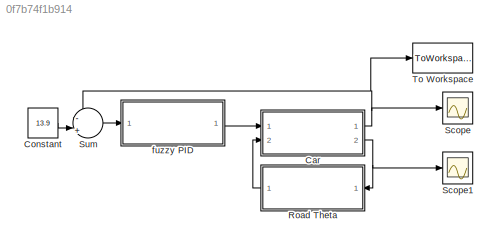
MODEL slx_0f7b74f1b914
KIND model
CONFIG AbsTol = auto
CONFIG FixedStep = auto
CONFIG MaxStep = auto
CONFIG MinStep = auto
CONFIG RelTol = 1e-3
CONFIG SampleTimeConstraint = Unconstrained
CONFIG Solver = VariableStepAuto
CONFIG SolverMode = Auto
CONFIG SolverName = VariableStepAuto
CONFIG StartTime = 0.0
CONFIG StopTime = 20
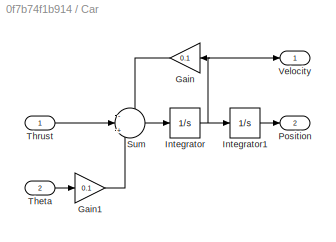
BLOCK [SubSystem] Car
  Ports = [2, 2]
  RequestExecContextInheritance = off
  Variant = off
BLOCK [Gain] Car/Gain
  Gain = 0.1
  OutDataTypeStr = Inherit: Inherit via internal rule
  ParamDataTypeStr = Inherit: Inherit via internal rule
  SaturateOnIntegerOverflow = off
BLOCK [Gain] Car/Gain1
  Gain = 0.1
  OutDataTypeStr = Inherit: Inherit via internal rule
  ParamDataTypeStr = Inherit: Inherit via internal rule
  SaturateOnIntegerOverflow = off
BLOCK [Integrator] Car/Integrator
  Ports = [1, 1]
BLOCK [Integrator] Car/Integrator1
  Ports = [1, 1]
BLOCK [Outport] Car/Position
  IconDisplay = Port number
  Port = 2
BLOCK [Sum] Car/Sum
  IconShape = round
  InputSameDT = off
  Inputs = -|+|-
  OutDataTypeStr = Inherit: Inherit via internal rule
  Ports = [3, 1]
  SaturateOnIntegerOverflow = off
BLOCK [Inport] Car/Theta
  IconDisplay = Port number
  Port = 2
BLOCK [Inport] Car/Thrust
  IconDisplay = Port number
BLOCK [Outport] Car/Velocity
  IconDisplay = Port number
BLOCK [Constant] Constant
  Value = 13.9
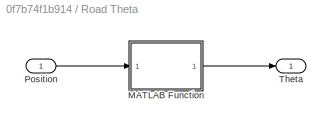
BLOCK [SubSystem] Road Theta
  Ports = [1, 1]
  RequestExecContextInheritance = off
  Variant = off
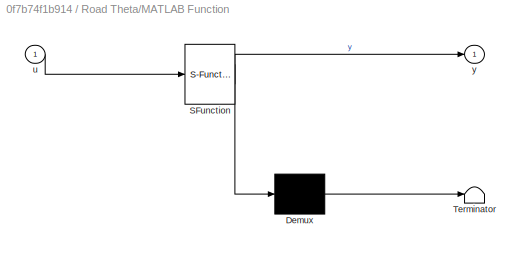
BLOCK [SubSystem] Road Theta/MATLAB Function
  ErrorFcn = Stateflow.Translate.translate
  PermitHierarchicalResolution = ExplicitOnly
  Ports = [1, 1]
  RequestExecContextInheritance = off
  SFBlockType = MATLAB Function
  TreatAsAtomicUnit = on
  Variant = off
BLOCK [Demux] Road Theta/MATLAB Function/ Demux 
  Outputs = 1
  Ports = [1, 1]
BLOCK [S-Function] Road Theta/MATLAB Function/ SFunction 
  EnableBusSupport = on
  FunctionName = sf_sfun
  PortCounts = [1 2]
  Ports = [1, 2]
  SFunctionDeploymentMode = off
  Tag = Stateflow S-Function sim 2
BLOCK [Terminator] Road Theta/MATLAB Function/ Terminator 
BLOCK [Inport] Road Theta/MATLAB Function/u
  IconDisplay = Port number
BLOCK [Outport] Road Theta/MATLAB Function/y
  IconDisplay = Port number
BLOCK [Inport] Road Theta/Position
  IconDisplay = Port number
BLOCK [Outport] Road Theta/Theta
  IconDisplay = Port number
BLOCK [Scope] Scope
  Ports = [1]
  ScopeSpecificationString = Simulink.scopes.TimeScopeBlockCfg('CurrentConfiguration', extmgr.ConfigurationSet(extmgr.Configuration('Core','General UI',true),extmgr.Configuration('Core','Source UI',true),extmgr.Configuration('Sources','WiredSimulink',true,'DataLoggingLimitDataPoints',true,'DataLoggingSaveFormat','Array','DataLoggingDecimation','1','DataLoggingDecimateData',true),extmgr.Configuration('Visuals','Time Domain',tr...<+1509ch>
BLOCK [Scope] Scope1
  Ports = [1]
  ScopeSpecificationString = Simulink.scopes.TimeScopeBlockCfg('CurrentConfiguration', extmgr.ConfigurationSet(extmgr.Configuration('Core','General UI',true),extmgr.Configuration('Core','Source UI',true),extmgr.Configuration('Sources','WiredSimulink',true,'DataLoggingVariableName','ScopeData1','DataLoggingLimitDataPoints',true,'DataLoggingSaveFormat','Array','DataLoggingDecimation','1','DataLoggingDecimateData',true),extmgr.C...<+1554ch>
BLOCK [Sum] Sum
  IconShape = round
  InputSameDT = off
  Inputs = -|+||
  OutDataTypeStr = Inherit: Inherit via internal rule
  Ports = [2, 1]
  SaturateOnIntegerOverflow = off
BLOCK [ToWorkspace] To Workspace
  FixptAsFi = on
  MaxDataPoints = inf
  Ports = [1]
  SampleTime = -1
  Save2DSignal = 3-D array (concatenate along third dimension)
  SaveFormat = Timeseries
  VariableName = velocity
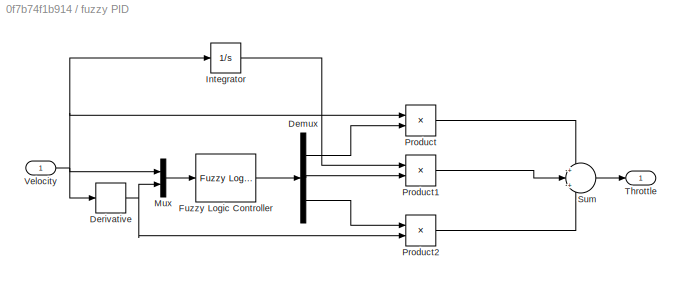
BLOCK [SubSystem] fuzzy PID 
  Ports = [1, 1]
  RequestExecContextInheritance = off
  Variant = off
BLOCK [Demux] fuzzy PID /Demux
  DisplayOption = bar
  Outputs = 3
  Ports = [1, 3]
BLOCK [Derivative] fuzzy PID /Derivative
BLOCK [Reference] fuzzy PID /Fuzzy Logic Controller  REF=fuzblock/Fuzzy Logic   (lib defined in mdl_858b3b3e7478)
Controller
  Ports = [1, 1]
  SourceBlock = fuzblock/Fuzzy Logic \nController
  SourceType = FIS
BLOCK [Integrator] fuzzy PID /Integrator
  Ports = [1, 1]
BLOCK [Mux] fuzzy PID /Mux
  DisplayOption = bar
  Inputs = 2
  Ports = [2, 1]
BLOCK [Product] fuzzy PID /Product
  InputSameDT = off
  OutDataTypeStr = Inherit: Inherit via internal rule
  Ports = [2, 1]
  RndMeth = Floor
  SaturateOnIntegerOverflow = off
BLOCK [Product] fuzzy PID /Product1
  InputSameDT = off
  OutDataTypeStr = Inherit: Inherit via internal rule
  Ports = [2, 1]
  RndMeth = Floor
  SaturateOnIntegerOverflow = off
BLOCK [Product] fuzzy PID /Product2
  InputSameDT = off
  OutDataTypeStr = Inherit: Inherit via internal rule
  Ports = [2, 1]
  RndMeth = Floor
  SaturateOnIntegerOverflow = off
BLOCK [Sum] fuzzy PID /Sum
  IconShape = round
  InputSameDT = off
  Inputs = +|+|+
  OutDataTypeStr = Inherit: Inherit via internal rule
  Ports = [3, 1]
  SaturateOnIntegerOverflow = off
BLOCK [Outport] fuzzy PID /Throttle
  IconDisplay = Port number
BLOCK [Inport] fuzzy PID /Velocity
  IconDisplay = Port number
LINE Car/Gain1:1 -> Car/Sum:3
LINE Car/Gain:1 -> Car/Sum:1
LINE Car/Integrator1:1 -> Car/Position:1
NET Car/Integrator:1 -> Car/Gain:1, Car/Integrator1:1, Car/Velocity:1
LINE Car/Sum:1 -> Car/Integrator:1
LINE Car/Theta:1 -> Car/Gain1:1
LINE Car/Thrust:1 -> Car/Sum:2
NET Car:1 -> Scope:1, Sum:1, To Workspace:1
NET Car:2 -> Road Theta:1, Scope1:1
LINE Constant:1 -> Sum:2
LINE Road Theta/MATLAB Function:1 -> Road Theta/Theta:1
LINE Road Theta/Position:1 -> Road Theta/MATLAB Function:1
LINE Road Theta:1 -> Car:2
LINE Sum:1 -> fuzzy PID :1
LINE fuzzy PID /Demux:1 -> fuzzy PID /Product:2
LINE fuzzy PID /Demux:2 -> fuzzy PID /Product1:2
LINE fuzzy PID /Demux:3 -> fuzzy PID /Product2:1
NET fuzzy PID /Derivative:1 -> fuzzy PID /Mux:2, fuzzy PID /Product2:2
LINE fuzzy PID /Fuzzy Logic Controller:1 -> fuzzy PID /Demux:1
LINE fuzzy PID /Integrator:1 -> fuzzy PID /Product1:1
LINE fuzzy PID /Mux:1 -> fuzzy PID /Fuzzy Logic Controller:1
LINE fuzzy PID /Product1:1 -> fuzzy PID /Sum:2
LINE fuzzy PID /Product2:1 -> fuzzy PID /Sum:3
LINE fuzzy PID /Product:1 -> fuzzy PID /Sum:1
LINE fuzzy PID /Sum:1 -> fuzzy PID /Throttle:1
NET fuzzy PID /Velocity:1 -> fuzzy PID /Derivative:1, fuzzy PID /Integrator:1, fuzzy PID /Mux:1, fuzzy PID /Product:1
LINE fuzzy PID :1 -> Car:1
note: NET lines group one-source signal fan-out (src -> all destinations, sorted); 1:1 wires keep LINE
CHART Road Theta/MATLAB Function states=1 transitions=1
  STATE_LABEL 'eML_blk_kernel()'
  STATE_LABEL 'SCRIPT:\nfunction y = fcn(u)\n\n\tif u < 0 \n        y = -5;\n    elseif u < 20 \n        y = -5 + u/4;\n    elseif u < 40\n        y = 0;\n    elseif u < 80\n        y = -10 + u/4;\n    else\n        y = 10;\n    end\n    \nend'
